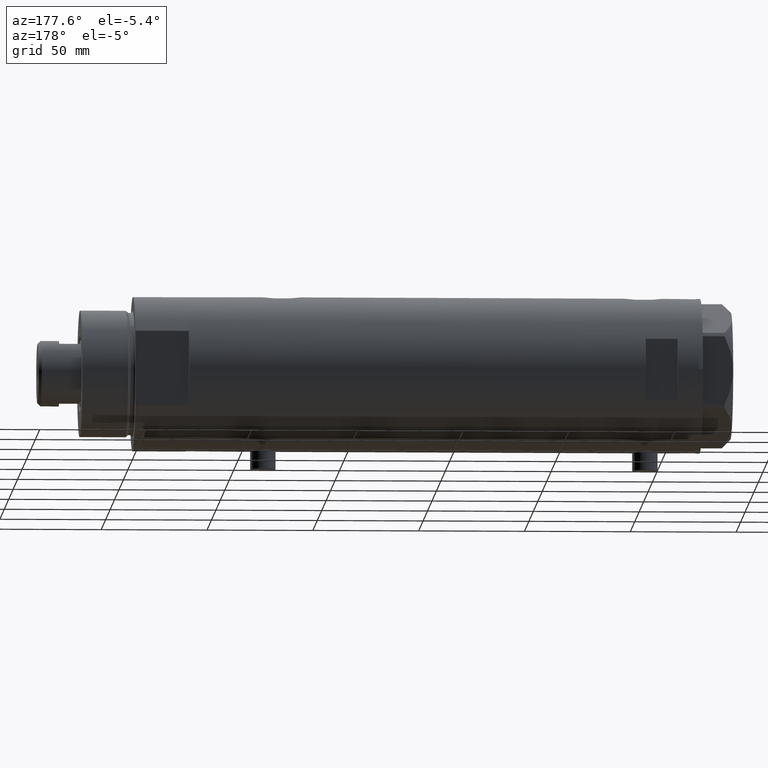
[diagram: clean part render]
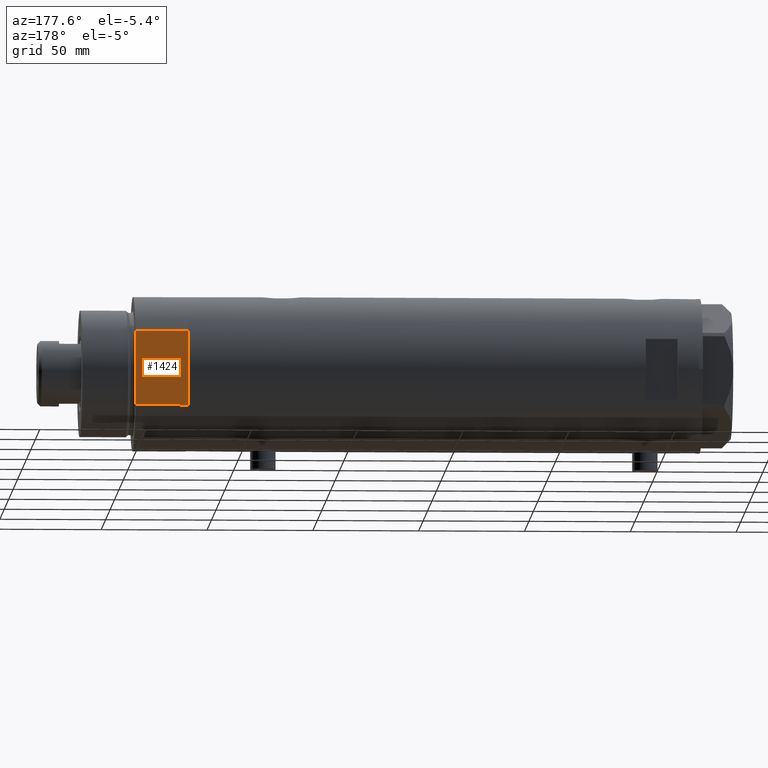
[diagram: same view with one face highlighted and labeled with its STEP entity id]
A machine part, auxiliary view. The second image highlights one B-rep face of the part: STEP entity #1424.
In plain terms, the highlighted planar face has unit normal (0, -1, -0).
Its self-contained STEP definition (entity closure, byte-faithful):
#110 = CARTESIAN_POINT ( 'NONE',  ( -17.55704986607943141, 32.00000000000000000, 25.19999999999999929 ) ) ;
#487 = ORIENTED_EDGE ( 'NONE', *, *, #1418, .F. ) ;
#530 = VERTEX_POINT ( 'NONE', #4394 ) ;
#532 = CARTESIAN_POINT ( 'NONE',  ( -17.55704986607943496, 32.00000000000000000, 25.19999999999999929 ) ) ;
#1142 = ORIENTED_EDGE ( 'NONE', *, *, #3152, .F. ) ;
#1189 = CARTESIAN_POINT ( 'NONE',  ( -17.55704986607943141, 32.00000000000000000, 0.000000000000000000 ) ) ;
#1418 = EDGE_CURVE ( 'NONE', #2691, #530, #1789, .T. ) ;
#1424 = ADVANCED_FACE ( 'NONE', ( #1814 ), #3922, .F. ) ;
#1628 = EDGE_LOOP ( 'NONE', ( #4146, #487, #1747, #1142, #3170 ) ) ;
#1633 = VECTOR ( 'NONE', #2452, 1000.000000000000000 ) ;
#1747 = ORIENTED_EDGE ( 'NONE', *, *, #3928, .F. ) ;
#1789 = LINE ( 'NONE', #3180, #1633 ) ;
#1814 = FACE_OUTER_BOUND ( 'NONE', #1628, .T. ) ;
#1974 = EDGE_CURVE ( 'NONE', #3956, #530, #3629, .T. ) ;
#2162 = DIRECTION ( 'NONE',  ( 0.000000000000000000, -1.000000000000000000, 0.000000000000000000 ) ) ;
#2253 = EDGE_CURVE ( 'NONE', #2564, #3956, #3189, .T. ) ;
#2299 = VECTOR ( 'NONE', #3696, 1000.000000000000000 ) ;
#2300 = LINE ( 'NONE', #1189, #2299 ) ;
#2452 = DIRECTION ( 'NONE',  ( -0.000000000000000000, -0.000000000000000000, 1.000000000000000000 ) ) ;
#2512 = VECTOR ( 'NONE', #3673, 1000.000000000000000 ) ;
#2550 = DIRECTION ( 'NONE',  ( 1.000000000000000000, 0.000000000000000000, 0.000000000000000000 ) ) ;
#2564 = VERTEX_POINT ( 'NONE', #3251 ) ;
#2691 = VERTEX_POINT ( 'NONE', #3632 ) ;
#2840 = CARTESIAN_POINT ( 'NONE',  ( -17.55704986607943141, 32.00000000000000000, 0.000000000000000000 ) ) ;
#2860 = CARTESIAN_POINT ( 'NONE',  ( -17.55704986607943141, 32.00000000000000000, 0.000000000000000000 ) ) ;
#2897 = LINE ( 'NONE', #2989, #3695 ) ;
#2989 = CARTESIAN_POINT ( 'NONE',  ( -17.55704986607943141, 32.00000000000000000, 0.000000000000000000 ) ) ;
#3077 = VERTEX_POINT ( 'NONE', #4362 ) ;
#3152 = EDGE_CURVE ( 'NONE', #2564, #3077, #2300, .T. ) ;
#3170 = ORIENTED_EDGE ( 'NONE', *, *, #2253, .T. ) ;
#3180 = CARTESIAN_POINT ( 'NONE',  ( 17.55704986607943141, 32.00000000000000000, 0.000000000000000000 ) ) ;
#3189 = LINE ( 'NONE', #2860, #4468 ) ;
#3224 = DIRECTION ( 'NONE',  ( -0.000000000000000000, -0.000000000000000000, 1.000000000000000000 ) ) ;
#3251 = CARTESIAN_POINT ( 'NONE',  ( -17.55704986607943141, 32.00000000000000000, 0.000000000000000000 ) ) ;
#3629 = LINE ( 'NONE', #110, #2512 ) ;
#3632 = CARTESIAN_POINT ( 'NONE',  ( 17.55704986607943496, 32.00000000000000000, 0.000000000000000000 ) ) ;
#3673 = DIRECTION ( 'NONE',  ( 1.000000000000000000, 0.000000000000000000, 0.000000000000000000 ) ) ;
#3695 = VECTOR ( 'NONE', #2550, 1000.000000000000000 ) ;
#3696 = DIRECTION ( 'NONE',  ( 1.000000000000000000, 0.000000000000000000, 0.000000000000000000 ) ) ;
#3922 = PLANE ( 'NONE',  #4233 ) ;
#3928 = EDGE_CURVE ( 'NONE', #3077, #2691, #2897, .T. ) ;
#3956 = VERTEX_POINT ( 'NONE', #532 ) ;
#4146 = ORIENTED_EDGE ( 'NONE', *, *, #1974, .T. ) ;
#4212 = DIRECTION ( 'NONE',  ( 0.000000000000000000, -0.000000000000000000, -1.000000000000000000 ) ) ;
#4233 = AXIS2_PLACEMENT_3D ( 'NONE', #2840, #2162, #4212 ) ;
#4362 = CARTESIAN_POINT ( 'NONE',  ( 0.000000000000000000, 32.00000000000000000, 0.000000000000000000 ) ) ;
#4394 = CARTESIAN_POINT ( 'NONE',  ( 17.55704986607943496, 32.00000000000000000, 25.19999999999999929 ) ) ;
#4468 = VECTOR ( 'NONE', #3224, 1000.000000000000000 ) ;